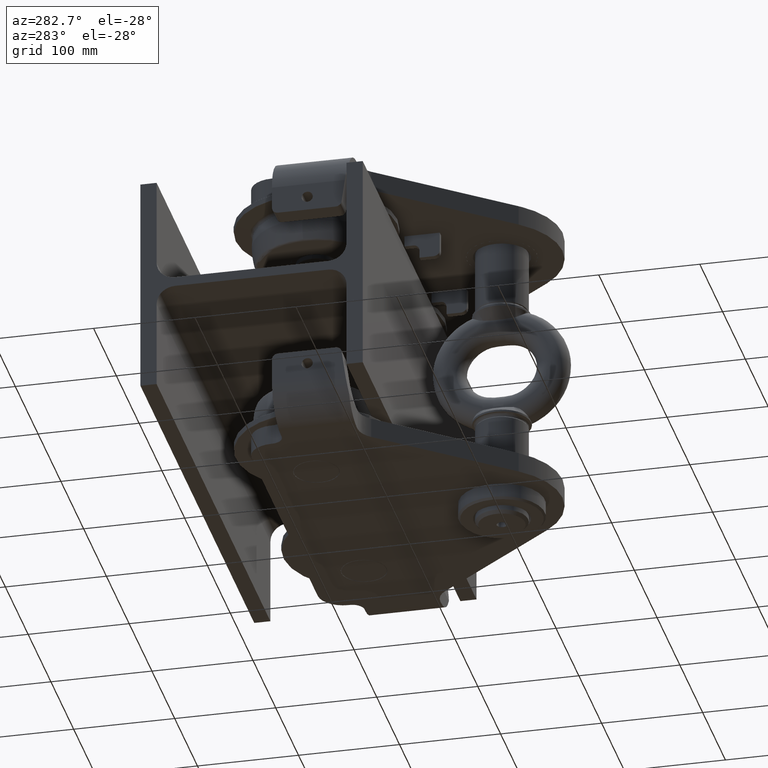
[diagram: clean part render]
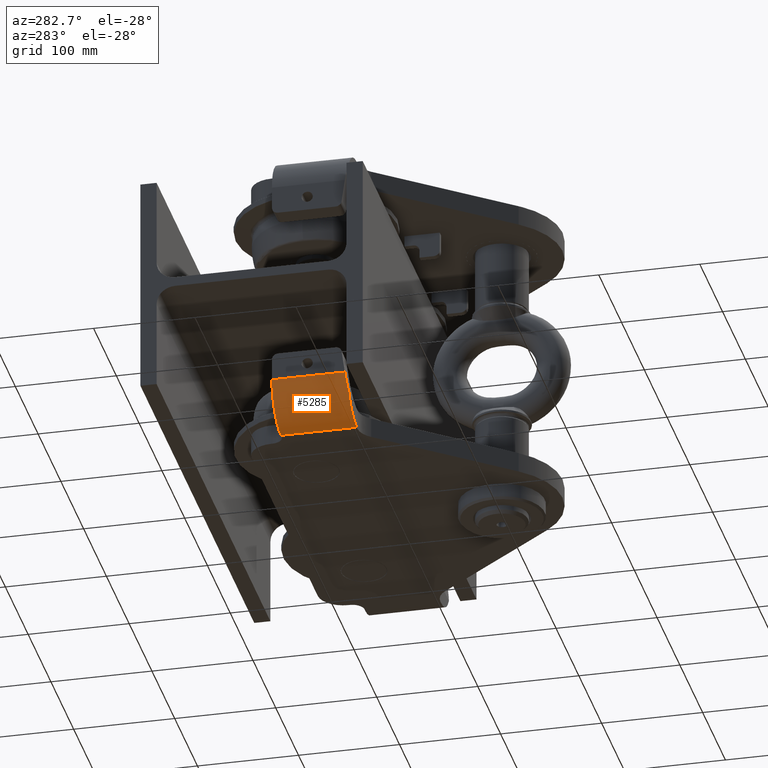
[diagram: same view with one face highlighted and labeled with its STEP entity id]
A machine part, auxiliary view. The second image highlights one B-rep face of the part: STEP entity #5285.
In plain terms, the highlighted cylindrical surface (partial cylindrical patch) has radius 40 mm, axis along (0, 1, 0).
Its self-contained STEP definition (entity closure, byte-faithful):
#161 = CIRCLE ( 'NONE', #2923, 40.00000000000000700 ) ;
#838 = LINE ( 'NONE', #23534, #23856 ) ;
#2217 = ORIENTED_EDGE ( 'NONE', *, *, #18318, .T. ) ;
#2250 = CARTESIAN_POINT ( 'NONE',  ( -225.0000000000000600, -14.50000000000005500, -104.9999999999983700 ) ) ;
#2923 = AXIS2_PLACEMENT_3D ( 'NONE', #31692, #34314, #37320 ) ;
#3715 = EDGE_CURVE ( 'NONE', #10166, #26826, #32713, .T. ) ;
#4258 = CARTESIAN_POINT ( 'NONE',  ( -223.1721504074361900, -88.64043764716827000, -118.8838960601581500 ) ) ;
#5285 = ADVANCED_FACE ( 'NONE', ( #12705 ), #16930, .T. ) ;
#6515 =( BOUNDED_CURVE ( )  B_SPLINE_CURVE ( 3, ( #34032, #19037, #4258, #16418 ),
 .UNSPECIFIED., .F., .F. ) 
 B_SPLINE_CURVE_WITH_KNOTS ( ( 4, 4 ),
 ( 1.570796326794897000, 2.094395102393205900 ),
 .UNSPECIFIED. ) 
 CURVE ( )  GEOMETRIC_REPRESENTATION_ITEM ( )  RATIONAL_B_SPLINE_CURVE ( ( 1.000000000000000000, 0.9772838841927111700, 0.9772838841927111700, 1.000000000000000000 ) ) 
 REPRESENTATION_ITEM ( '' )  );
#8448 = CARTESIAN_POINT ( 'NONE',  ( -185.0000000000000600, -89.49999999999997200, -144.9999999999984100 ) ) ;
#8692 = DIRECTION ( 'NONE',  ( -1.000000000000000000, -1.387778780781445500E-015, 0.0000000000000000000 ) ) ;
#10166 = VERTEX_POINT ( 'NONE', #8448 ) ;
#11517 = DIRECTION ( 'NONE',  ( 0.0000000000000000000, 1.000000000000000000, 1.224606353822377300E-016 ) ) ;
#11765 = EDGE_LOOP ( 'NONE', ( #26259, #2217, #17641, #33971, #33741 ) ) ;
#12705 = FACE_OUTER_BOUND ( 'NONE', #11765, .T. ) ;
#15436 = VECTOR ( 'NONE', #20409, 1000.000000000000000 ) ;
#16418 = CARTESIAN_POINT ( 'NONE',  ( -219.6410161513774100, -89.50000000000001400, -124.9999999999987400 ) ) ;
#16771 = AXIS2_PLACEMENT_3D ( 'NONE', #26542, #35673, #8692 ) ;
#16930 = CYLINDRICAL_SURFACE ( 'NONE', #17869, 40.00000000000000700 ) ;
#17218 = CARTESIAN_POINT ( 'NONE',  ( -185.0000000000000600, -14.50000000000000500, -144.9999999999983800 ) ) ;
#17641 = ORIENTED_EDGE ( 'NONE', *, *, #31570, .T. ) ;
#17869 = AXIS2_PLACEMENT_3D ( 'NONE', #33167, #24828, #18026 ) ;
#18026 = DIRECTION ( 'NONE',  ( 1.000000000000000000, 0.0000000000000000000, 0.0000000000000000000 ) ) ;
#18239 = CIRCLE ( 'NONE', #16771, 40.00000000000000700 ) ;
#18318 = EDGE_CURVE ( 'NONE', #32112, #34160, #838, .T. ) ;
#18647 = CARTESIAN_POINT ( 'NONE',  ( -225.0000000000000300, -86.68918330595229800, -104.9999999999983900 ) ) ;
#19037 = CARTESIAN_POINT ( 'NONE',  ( -225.0000000000000600, -87.68172041753761900, -112.0622685121158400 ) ) ;
#19622 = EDGE_CURVE ( 'NONE', #32112, #20157, #6515, .T. ) ;
#20147 = CARTESIAN_POINT ( 'NONE',  ( -219.6410161513774100, -89.50000000000001400, -124.9999999999987400 ) ) ;
#20157 = VERTEX_POINT ( 'NONE', #20147 ) ;
#20409 = DIRECTION ( 'NONE',  ( 0.0000000000000000000, 1.000000000000000000, 1.224606353822377300E-016 ) ) ;
#22668 = EDGE_CURVE ( 'NONE', #10166, #20157, #18239, .T. ) ;
#23037 = CARTESIAN_POINT ( 'NONE',  ( -185.0000000000000600, -251.5000000000000600, -144.9999999999984100 ) ) ;
#23534 = CARTESIAN_POINT ( 'NONE',  ( -225.0000000000000600, -251.5000000000000600, -104.9999999999984100 ) ) ;
#23856 = VECTOR ( 'NONE', #11517, 1000.000000000000000 ) ;
#24828 = DIRECTION ( 'NONE',  ( 0.0000000000000000000, 1.000000000000000000, 1.224606353822377300E-016 ) ) ;
#26259 = ORIENTED_EDGE ( 'NONE', *, *, #19622, .F. ) ;
#26542 = CARTESIAN_POINT ( 'NONE',  ( -185.0000000000000600, -89.49999999999997200, -104.9999999999983800 ) ) ;
#26826 = VERTEX_POINT ( 'NONE', #17218 ) ;
#31570 = EDGE_CURVE ( 'NONE', #34160, #26826, #161, .T. ) ;
#31692 = CARTESIAN_POINT ( 'NONE',  ( -185.0000000000000600, -14.50000000000001200, -104.9999999999983700 ) ) ;
#32112 = VERTEX_POINT ( 'NONE', #18647 ) ;
#32713 = LINE ( 'NONE', #23037, #15436 ) ;
#33167 = CARTESIAN_POINT ( 'NONE',  ( -185.0000000000000600, -251.5000000000000600, -104.9999999999984100 ) ) ;
#33741 = ORIENTED_EDGE ( 'NONE', *, *, #22668, .T. ) ;
#33971 = ORIENTED_EDGE ( 'NONE', *, *, #3715, .F. ) ;
#34032 = CARTESIAN_POINT ( 'NONE',  ( -225.0000000000000300, -86.68918330595229800, -104.9999999999983900 ) ) ;
#34160 = VERTEX_POINT ( 'NONE', #2250 ) ;
#34314 = DIRECTION ( 'NONE',  ( 9.682177540335663000E-016, -1.000000000000000000, -1.224606353822377300E-016 ) ) ;
#35673 = DIRECTION ( 'NONE',  ( -1.287321508721320900E-015, 1.000000000000000000, 1.224606353822377300E-016 ) ) ;
#37320 = DIRECTION ( 'NONE',  ( 1.000000000000000000, 9.540979117872437000E-016, 0.0000000000000000000 ) ) ;